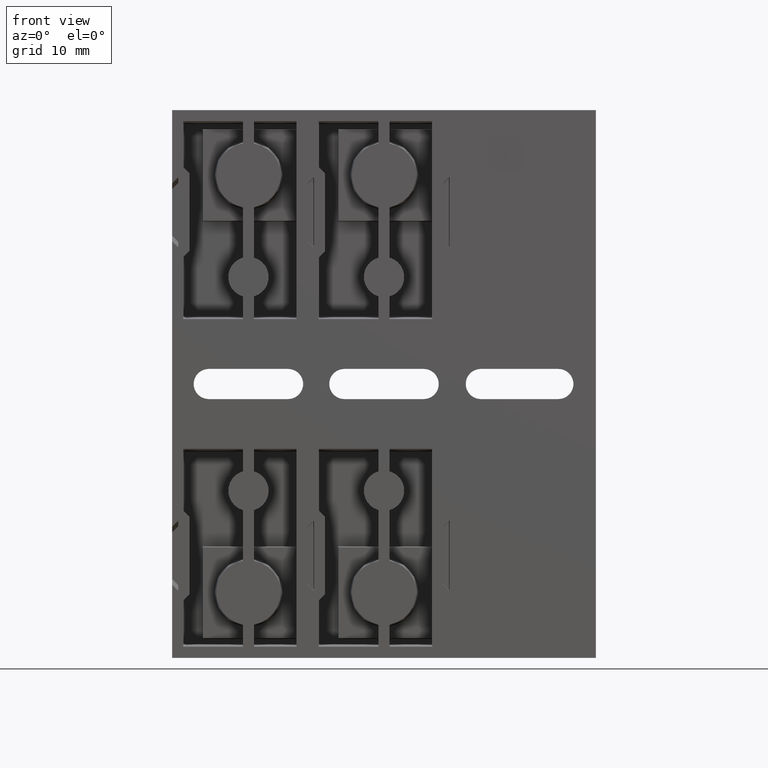
[diagram: clean part render]
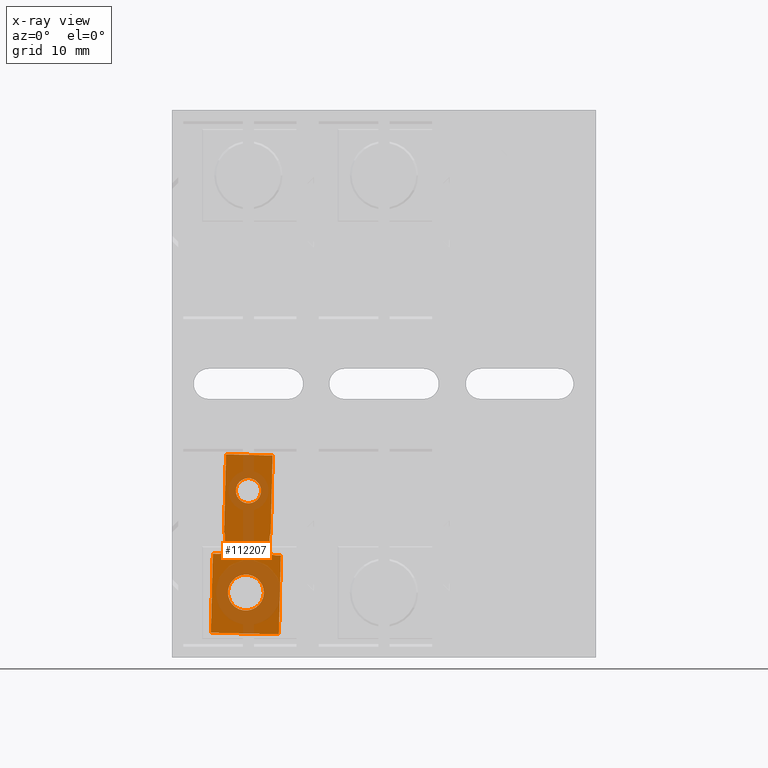
[diagram: x-ray — body ghosted, one internal face saturated and labeled with its STEP entity id]
A machine part, front view, then the same camera in x-ray: the body is ghosted and one INTERNAL B-rep face — a face not visible from any outside direction — is saturated and labeled: STEP entity #112207.
In plain terms, the highlighted planar face has unit normal (0, -1, -0).
Its self-contained STEP definition (entity closure, byte-faithful):
#214 = CIRCLE ( 'NONE', #39321, 0.07000000000000006200 ) ;
#318 = LINE ( 'NONE', #51652, #59414 ) ;
#532 = DIRECTION ( 'NONE',  ( -6.913117336301641800E-019, 1.000000000000000000, 1.722928639588066100E-020 ) ) ;
#1083 = VERTEX_POINT ( 'NONE', #134295 ) ;
#1594 = CARTESIAN_POINT ( 'NONE',  ( -1.424157770390835900, 0.5399999999999998100, -1.164315476353601000 ) ) ;
#3596 = CARTESIAN_POINT ( 'NONE',  ( -1.634976672099374100, 0.5399999999999998100, -0.3918231523254556100 ) ) ;
#4506 = ORIENTED_EDGE ( 'NONE', *, *, #60073, .T. ) ;
#5227 = VERTEX_POINT ( 'NONE', #100793 ) ;
#5289 = VERTEX_POINT ( 'NONE', #69257 ) ;
#5697 = EDGE_CURVE ( 'NONE', #49394, #5289, #20574, .T. ) ;
#6452 = DIRECTION ( 'NONE',  ( -0.02491486428498301500, 0.0000000000000000000, -0.9996895765874828100 ) ) ;
#8961 = VECTOR ( 'NONE', #87989, 39.37007874015748100 ) ;
#10817 = DIRECTION ( 'NONE',  ( -6.913117336301641800E-019, 1.000000000000000000, 1.722928639588066100E-020 ) ) ;
#11098 = CARTESIAN_POINT ( 'NONE',  ( -1.393111218954898000, 0.5399999999999998100, -0.9220137808499673200 ) ) ;
#14796 = CARTESIAN_POINT ( 'NONE',  ( -1.645817579437073500, 0.5399999999999998100, -0.8268061384772172900 ) ) ;
#15526 = CARTESIAN_POINT ( 'NONE',  ( -1.641239742873250100, 0.5399999999999998100, -0.8438074152644228200 ) ) ;
#15738 = CARTESIAN_POINT ( 'NONE',  ( -1.524126728049584500, 0.5399999999999998100, -1.161823989925102800 ) ) ;
#16001 = CARTESIAN_POINT ( 'NONE',  ( -1.579978270361122700, 0.5399999999999998100, -0.5932559595000511700 ) ) ;
#16170 = LINE ( 'NONE', #68806, #45807 ) ;
#16665 = CARTESIAN_POINT ( 'NONE',  ( -1.674796350768815300, 0.5399999999999998100, -0.9460030808600992100 ) ) ;
#17507 = CARTESIAN_POINT ( 'NONE',  ( -1.708285951584495500, 0.5399999999999998100, -0.9451684329065521700 ) ) ;
#18228 = AXIS2_PLACEMENT_3D ( 'NONE', #77342, #10817, #88477 ) ;
#20574 = LINE ( 'NONE', #32196, #128170 ) ;
#21038 = DIRECTION ( 'NONE',  ( 0.9996895765874828100, -1.306473194496289300E-016, -0.02491486428498301500 ) ) ;
#21130 = CIRCLE ( 'NONE', #123843, 0.03099999999999992000 ) ;
#23488 = CARTESIAN_POINT ( 'NONE',  ( -1.391317348726379500, 0.5399999999999998100, -0.8500361313356685800 ) ) ;
#23692 = CARTESIAN_POINT ( 'NONE',  ( -1.360326971852167600, 0.5399999999999998100, -0.8508084921285031800 ) ) ;
#24030 = CIRCLE ( 'NONE', #82002, 0.1000000000000001000 ) ;
#26900 = DIRECTION ( 'NONE',  ( 0.9996895765874828100, 0.0000000000000000000, -0.02491486428498307400 ) ) ;
#27059 = AXIS2_PLACEMENT_3D ( 'NONE', #23692, #101358, #34892 ) ;
#27670 = ORIENTED_EDGE ( 'NONE', *, *, #102055, .T. ) ;
#27968 = VERTEX_POINT ( 'NONE', #14796 ) ;
#29257 = VECTOR ( 'NONE', #95233, 39.37007874015748100 ) ;
#29933 = VERTEX_POINT ( 'NONE', #23488 ) ;
#30177 = CARTESIAN_POINT ( 'NONE',  ( -1.329403602057840400, 0.5399999999999998100, -0.9546111664705606600 ) ) ;
#30581 = EDGE_CURVE ( 'NONE', #94262, #89636, #214, .T. ) ;
#31832 = CIRCLE ( 'NONE', #120894, 0.03099999999999992000 ) ;
#32196 = CARTESIAN_POINT ( 'NONE',  ( -1.375057382186629700, 0.5399999999999998100, -0.3983010170395511800 ) ) ;
#34323 = ORIENTED_EDGE ( 'NONE', *, *, #81420, .F. ) ;
#34892 = DIRECTION ( 'NONE',  ( -0.9996895765874829200, 0.0000000000000000000, 0.02491486428498188700 ) ) ;
#36808 = VERTEX_POINT ( 'NONE', #1594 ) ;
#38288 = EDGE_CURVE ( 'NONE', #29933, #87860, #318, .T. ) ;
#38477 = EDGE_CURVE ( 'NONE', #89636, #94262, #85292, .T. ) ;
#38524 = LINE ( 'NONE', #54571, #8961 ) ;
#38919 = ORIENTED_EDGE ( 'NONE', *, *, #50558, .T. ) ;
#39141 = LINE ( 'NONE', #127443, #61676 ) ;
#39321 = AXIS2_PLACEMENT_3D ( 'NONE', #114540, #48065, #125653 ) ;
#41223 = DIRECTION ( 'NONE',  ( 6.913117336301642700E-019, -1.000000000000000000, -1.722928639588066700E-020 ) ) ;
#41440 = DIRECTION ( 'NONE',  ( -0.9996895765874828100, -6.915263996149780800E-019, 0.02491486428498301500 ) ) ;
#42364 = CARTESIAN_POINT ( 'NONE',  ( -1.672230119747461800, 0.5399999999999998100, -0.8430350544715884400 ) ) ;
#44355 = ORIENTED_EDGE ( 'NONE', *, *, #136615, .T. ) ;
#45303 = DIRECTION ( 'NONE',  ( -0.02491486428498301500, 0.0000000000000000000, -0.9996895765874828100 ) ) ;
#45807 = VECTOR ( 'NONE', #135159, 39.37007874015748100 ) ;
#45862 = CARTESIAN_POINT ( 'NONE',  ( -1.440021729638875100, 0.5399999999999998100, -0.5967440404999487800 ) ) ;
#48065 = DIRECTION ( 'NONE',  ( -6.913117336301641800E-019, 1.000000000000000000, 1.722928639588066100E-020 ) ) ;
#49063 = LINE ( 'NONE', #57817, #104594 ) ;
#49394 = VERTEX_POINT ( 'NONE', #3596 ) ;
#50558 = EDGE_CURVE ( 'NONE', #52123, #64026, #114413, .T. ) ;
#51652 = CARTESIAN_POINT ( 'NONE',  ( -1.390544987933544800, 0.5399999999999998100, -0.8190457544614565500 ) ) ;
#52123 = VERTEX_POINT ( 'NONE', #58882 ) ;
#52680 = CARTESIAN_POINT ( 'NONE',  ( -1.329403602057840400, 0.5399999999999998100, -0.9546111664705606600 ) ) ;
#53285 = VERTEX_POINT ( 'NONE', #98498 ) ;
#53500 = DIRECTION ( 'NONE',  ( -0.9996895765874829200, 0.0000000000000000000, 0.02491486428498188700 ) ) ;
#54571 = CARTESIAN_POINT ( 'NONE',  ( -1.329403602057840400, 0.5399999999999998100, -0.9546111664705606600 ) ) ;
#55322 = CIRCLE ( 'NONE', #27059, 0.03099999999999992000 ) ;
#56339 = ORIENTED_EDGE ( 'NONE', *, *, #141660, .T. ) ;
#57817 = CARTESIAN_POINT ( 'NONE',  ( -1.329403602057840400, 0.5399999999999998100, -0.9546111664705606600 ) ) ;
#58181 = VERTEX_POINT ( 'NONE', #15526 ) ;
#58297 = DIRECTION ( 'NONE',  ( -0.02491486428498301500, 0.0000000000000000000, -0.9996895765874828100 ) ) ;
#58882 = CARTESIAN_POINT ( 'NONE',  ( -1.708285951584495500, 0.5399999999999998100, -0.9451684329065521700 ) ) ;
#59414 = VECTOR ( 'NONE', #6452, 39.37007874015748100 ) ;
#60073 = EDGE_CURVE ( 'NONE', #27968, #58181, #118863, .T. ) ;
#60868 = CARTESIAN_POINT ( 'NONE',  ( -1.362893202873520600, 0.5399999999999998100, -0.9537765185170139500 ) ) ;
#61676 = VECTOR ( 'NONE', #116787, 39.37007874015748100 ) ;
#62548 = PLANE ( 'NONE',  #115917 ) ;
#63417 = ORIENTED_EDGE ( 'NONE', *, *, #86991, .F. ) ;
#64026 = VERTEX_POINT ( 'NONE', #120403 ) ;
#64548 = CARTESIAN_POINT ( 'NONE',  ( -1.362120842080686300, 0.5399999999999998100, -0.9227861416428017000 ) ) ;
#64885 = EDGE_CURVE ( 'NONE', #53285, #36808, #89299, .T. ) ;
#66537 = CARTESIAN_POINT ( 'NONE',  ( -1.524126728049584500, 0.5399999999999998100, -1.161823989925102800 ) ) ;
#66637 = EDGE_CURVE ( 'NONE', #5289, #82788, #39141, .T. ) ;
#67147 = CARTESIAN_POINT ( 'NONE',  ( -1.674023989975981000, 0.5399999999999998100, -0.9150127039858870800 ) ) ;
#68806 = CARTESIAN_POINT ( 'NONE',  ( -1.640467382080415400, 0.5399999999999998100, -0.8128170383902108000 ) ) ;
#69257 = CARTESIAN_POINT ( 'NONE',  ( -1.375057382186629700, 0.5399999999999998100, -0.3983010170395511800 ) ) ;
#71564 = CARTESIAN_POINT ( 'NONE',  ( -1.340366142343232900, 0.5399999999999998100, -1.394474580169053200 ) ) ;
#71677 = VERTEX_POINT ( 'NONE', #60868 ) ;
#72783 = ORIENTED_EDGE ( 'NONE', *, *, #86124, .T. ) ;
#75679 = DIRECTION ( 'NONE',  ( -0.9996895765874829200, 0.0000000000000000000, 0.02491486428498188700 ) ) ;
#76891 = EDGE_LOOP ( 'NONE', ( #44355, #136567 ) ) ;
#77342 = CARTESIAN_POINT ( 'NONE',  ( -1.509999999999998900, 0.5399999999999998100, -0.5949999999999999700 ) ) ;
#77642 = DIRECTION ( 'NONE',  ( 0.9996895765874828100, 0.0000000000000000000, -0.02491486428498307400 ) ) ;
#77951 = ORIENTED_EDGE ( 'NONE', *, *, #5697, .F. ) ;
#78061 = LINE ( 'NONE', #30177, #91946 ) ;
#78262 = DIRECTION ( 'NONE',  ( -0.9996895765874829200, 0.0000000000000000000, 0.02491486428498188700 ) ) ;
#79430 = EDGE_LOOP ( 'NONE', ( #140196, #102358 ) ) ;
#80955 = AXIS2_PLACEMENT_3D ( 'NONE', #15738, #93441, #26900 ) ;
#81420 = EDGE_CURVE ( 'NONE', #95796, #5227, #49063, .T. ) ;
#82002 = AXIS2_PLACEMENT_3D ( 'NONE', #66537, #144093, #77642 ) ;
#82788 = VERTEX_POINT ( 'NONE', #95744 ) ;
#83198 = DIRECTION ( 'NONE',  ( -0.9996895765874828100, -6.915263996149780800E-019, 0.02491486428498301500 ) ) ;
#83546 = EDGE_LOOP ( 'NONE', ( #63417, #34323, #140375, #72783, #86848, #98300, #127331, #77951, #27670, #4506, #91805, #56339, #106263, #38919 ) ) ;
#85292 = CIRCLE ( 'NONE', #18228, 0.07000000000000006200 ) ;
#86124 = EDGE_CURVE ( 'NONE', #71677, #87860, #31832, .T. ) ;
#86848 = ORIENTED_EDGE ( 'NONE', *, *, #38288, .F. ) ;
#86991 = EDGE_CURVE ( 'NONE', #5227, #64026, #113140, .T. ) ;
#87232 = EDGE_CURVE ( 'NONE', #95796, #71677, #38524, .T. ) ;
#87860 = VERTEX_POINT ( 'NONE', #11098 ) ;
#87989 = DIRECTION ( 'NONE',  ( -0.9996895765874828100, -6.915263996149780800E-019, 0.02491486428498301500 ) ) ;
#88366 = AXIS2_PLACEMENT_3D ( 'NONE', #42364, #119894, #53500 ) ;
#88477 = DIRECTION ( 'NONE',  ( 0.9996895765874828100, 0.0000000000000000000, -0.02491486428498346900 ) ) ;
#89299 = CIRCLE ( 'NONE', #80955, 0.1000000000000001000 ) ;
#89636 = VERTEX_POINT ( 'NONE', #45862 ) ;
#90414 = LINE ( 'NONE', #134931, #113005 ) ;
#91805 = ORIENTED_EDGE ( 'NONE', *, *, #133994, .T. ) ;
#91946 = VECTOR ( 'NONE', #41440, 39.37007874015748100 ) ;
#93441 = DIRECTION ( 'NONE',  ( -6.913117336301641800E-019, 1.000000000000000000, 1.722928639588066100E-020 ) ) ;
#94262 = VERTEX_POINT ( 'NONE', #16001 ) ;
#95233 = DIRECTION ( 'NONE',  ( -0.02491486428498301500, 0.0000000000000000000, -0.9996895765874828100 ) ) ;
#95744 = CARTESIAN_POINT ( 'NONE',  ( -1.385898289524327900, 0.5399999999999998100, -0.8332840031913130200 ) ) ;
#95796 = VERTEX_POINT ( 'NONE', #52680 ) ;
#98300 = ORIENTED_EDGE ( 'NONE', *, *, #136649, .T. ) ;
#98498 = CARTESIAN_POINT ( 'NONE',  ( -1.624095685708332800, 0.5399999999999998100, -1.159332503496604400 ) ) ;
#100793 = CARTESIAN_POINT ( 'NONE',  ( -1.340366142343232900, 0.5399999999999998100, -1.394474580169053200 ) ) ;
#101358 = DIRECTION ( 'NONE',  ( -6.913117336301641800E-019, 1.000000000000000000, 1.722928639588066100E-020 ) ) ;
#102055 = EDGE_CURVE ( 'NONE', #49394, #27968, #90414, .T. ) ;
#102358 = ORIENTED_EDGE ( 'NONE', *, *, #30581, .T. ) ;
#104594 = VECTOR ( 'NONE', #58297, 39.37007874015748100 ) ;
#106263 = ORIENTED_EDGE ( 'NONE', *, *, #129111, .T. ) ;
#107630 = CARTESIAN_POINT ( 'NONE',  ( -1.329403602057840400, 0.5399999999999998100, -0.9546111664705606600 ) ) ;
#111703 = FACE_OUTER_BOUND ( 'NONE', #83546, .T. ) ;
#112207 = ADVANCED_FACE ( 'NONE', ( #137611, #134153, #111703 ), #62548, .T. ) ;
#113005 = VECTOR ( 'NONE', #45303, 39.37007874015748100 ) ;
#113140 = LINE ( 'NONE', #71564, #142604 ) ;
#113901 = VERTEX_POINT ( 'NONE', #16665 ) ;
#114413 = LINE ( 'NONE', #17507, #29257 ) ;
#114540 = CARTESIAN_POINT ( 'NONE',  ( -1.509999999999998900, 0.5399999999999998100, -0.5949999999999999700 ) ) ;
#115917 = AXIS2_PLACEMENT_3D ( 'NONE', #107630, #41223, #118779 ) ;
#116787 = DIRECTION ( 'NONE',  ( -0.02491486428498301500, 0.0000000000000000000, -0.9996895765874828100 ) ) ;
#118779 = DIRECTION ( 'NONE',  ( -0.9996895765874828100, -6.915263996149780800E-019, 0.02491486428498301500 ) ) ;
#118863 = CIRCLE ( 'NONE', #88366, 0.03099999999999992000 ) ;
#119894 = DIRECTION ( 'NONE',  ( -6.913117336301641800E-019, 1.000000000000000000, 1.722928639588066100E-020 ) ) ;
#120403 = CARTESIAN_POINT ( 'NONE',  ( -1.719248491869888000, 0.5399999999999998100, -1.385031846605044400 ) ) ;
#120894 = AXIS2_PLACEMENT_3D ( 'NONE', #64548, #142091, #75679 ) ;
#123843 = AXIS2_PLACEMENT_3D ( 'NONE', #67147, #532, #78262 ) ;
#125653 = DIRECTION ( 'NONE',  ( 0.9996895765874828100, 0.0000000000000000000, -0.02491486428498346900 ) ) ;
#127331 = ORIENTED_EDGE ( 'NONE', *, *, #66637, .F. ) ;
#127443 = CARTESIAN_POINT ( 'NONE',  ( -1.381659821222150000, 0.5399999999999998100, -0.6632187548352341800 ) ) ;
#128170 = VECTOR ( 'NONE', #21038, 39.37007874015748100 ) ;
#129111 = EDGE_CURVE ( 'NONE', #113901, #52123, #78061, .T. ) ;
#133994 = EDGE_CURVE ( 'NONE', #58181, #1083, #16170, .T. ) ;
#134153 = FACE_BOUND ( 'NONE', #76891, .T. ) ;
#134295 = CARTESIAN_POINT ( 'NONE',  ( -1.643033613101768900, 0.5399999999999998100, -0.9157850647787215700 ) ) ;
#134931 = CARTESIAN_POINT ( 'NONE',  ( -1.641579111134895600, 0.5399999999999998100, -0.6567408901211385700 ) ) ;
#135159 = DIRECTION ( 'NONE',  ( -0.02491486428498301500, 0.0000000000000000000, -0.9996895765874828100 ) ) ;
#136567 = ORIENTED_EDGE ( 'NONE', *, *, #64885, .T. ) ;
#136615 = EDGE_CURVE ( 'NONE', #36808, #53285, #24030, .T. ) ;
#136649 = EDGE_CURVE ( 'NONE', #29933, #82788, #55322, .T. ) ;
#137611 = FACE_BOUND ( 'NONE', #79430, .T. ) ;
#140196 = ORIENTED_EDGE ( 'NONE', *, *, #38477, .T. ) ;
#140375 = ORIENTED_EDGE ( 'NONE', *, *, #87232, .T. ) ;
#141660 = EDGE_CURVE ( 'NONE', #1083, #113901, #21130, .T. ) ;
#142091 = DIRECTION ( 'NONE',  ( -6.913117336301641800E-019, 1.000000000000000000, 1.722928639588066100E-020 ) ) ;
#142604 = VECTOR ( 'NONE', #83198, 39.37007874015748100 ) ;
#144093 = DIRECTION ( 'NONE',  ( -6.913117336301641800E-019, 1.000000000000000000, 1.722928639588066100E-020 ) ) ;